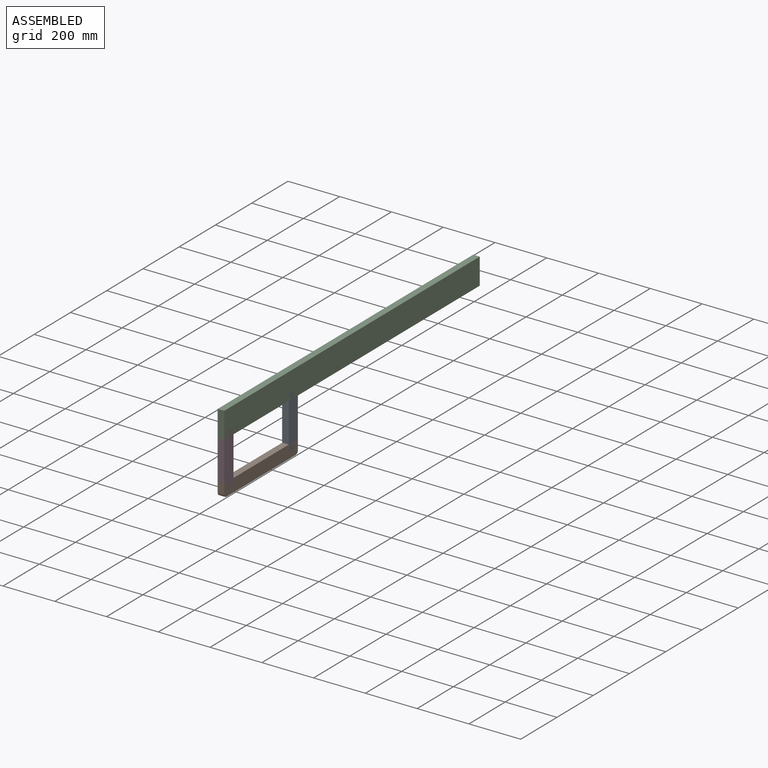
[diagram: assembled view]
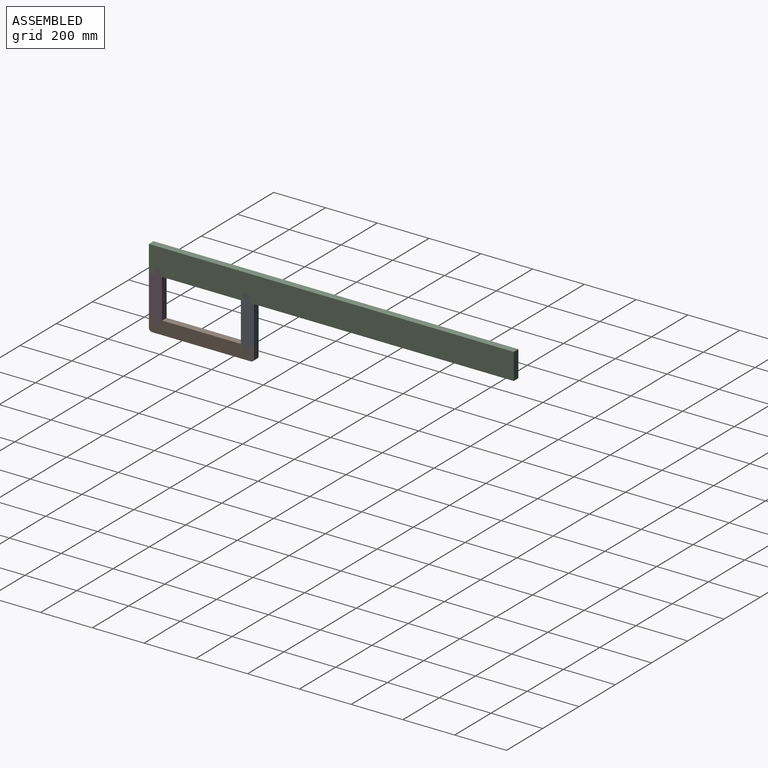
[diagram: assembled view, second angle]
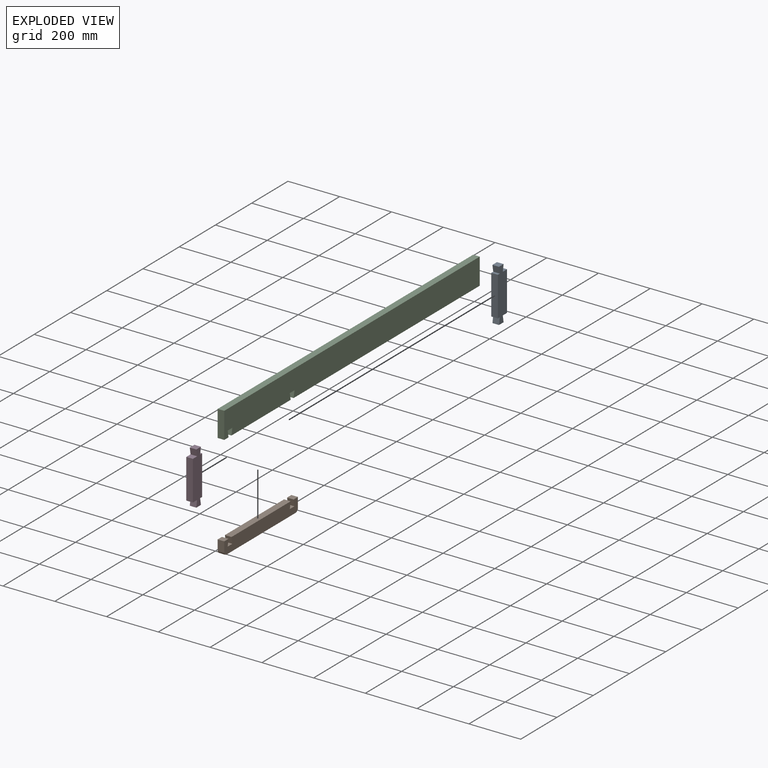
[diagram: exploded view]
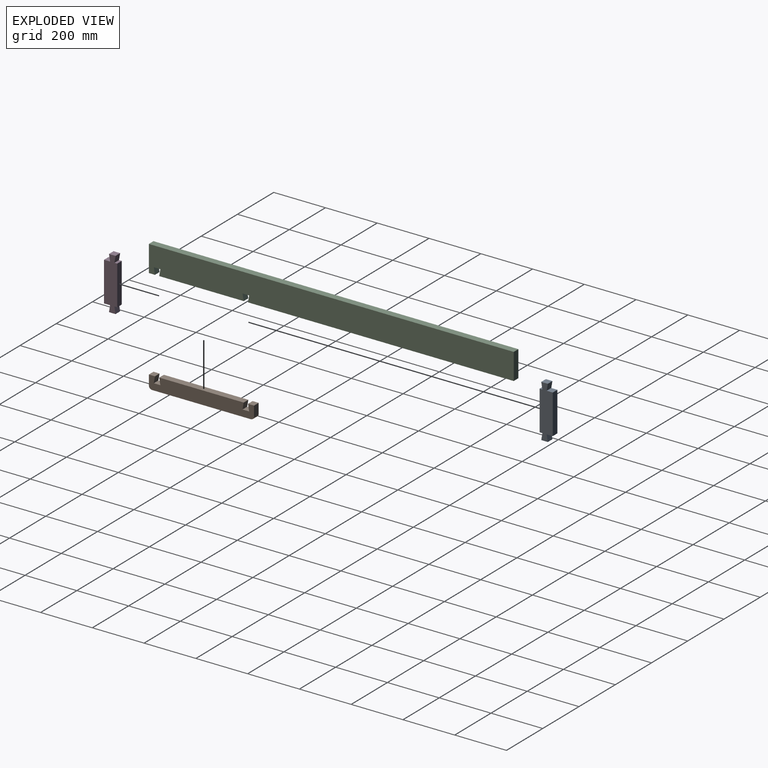
[diagram: exploded view, second angle]
ASSEMBLY  parts=4 mates=9
PART A: 14 faces, bbox 25.4x50.8x203.2 mm
  f0: plane 25.4x25.4mm, normal (0,0.98,-0.17), area 655.1mm2, adj f1,f11,f12,f13
  f1: plane 25.4x25.4mm, normal (0,0,1), area 645.2mm2, adj f0,f2,f12,f13
  f2: plane 25.4x25.4mm, normal (0,-0.98,-0.17), area 655.1mm2, adj f1,f3,f12,f13
  f3: plane 25.4x23.53mm, normal (0,0,1), area 597.6mm2, adj f2,f4,f12,f13
  f4: plane 152.4x25.4mm, normal (0,-1,0), area 3871mm2, adj f3,f5,f12,f13
  f5: plane 25.4x23.53mm, normal (0,0,-1), area 597.6mm2, adj f4,f6,f12,f13
  f6: plane 25.4x25.4mm, normal (0,-0.98,0.17), area 655.1mm2, adj f5,f7,f12,f13
  f7: plane 25.4x25.4mm, normal (0,0,-1), area 645.2mm2, adj f6,f8,f12,f13
  f8: plane 25.4x25.4mm, normal (0,0.98,0.17), area 655.1mm2, adj f7,f9,f12,f13
  f9: plane 25.4x10.83mm, normal (0,0,-1), area 275mm2, adj f8,f10,f12,f13
  f10: plane 152.4x25.4mm, normal (0,1,0), area 3871mm2, adj f9,f11,f12,f13
  f11: plane 25.4x10.83mm, normal (0,0,1), area 275mm2, adj f0,f10,f12,f13
  f12: plane 203.2x50.8mm, normal (1,0,0), area 8804.7mm2, adj f0,f1,f2,f3,f4,f5,f6,f7
  f13: plane 203.2x50.8mm, normal (-1,0,0), area 8804.7mm2, adj f0,f1,f2,f3,f4,f5,f6,f7
PART B: 16 faces, bbox 25.4x406.4x50.8 mm
  f0: plane 25.4x23.53mm, normal (0,0,1), area 597.6mm2, adj f1,f11,f12,f13
  f1: plane 38.1x25.4mm, normal (0,-1,0), area 967.7mm2, adj f0,f12,f13,f14
  f2: plane 381x25.4mm, normal (0,0,-1), area 9677.4mm2, adj f12,f13,f14,f15
  f3: plane 38.1x25.4mm, normal (0,1,0), area 967.7mm2, adj f4,f12,f13,f15
  f4: plane 25.4x23.53mm, normal (0,0,1), area 597.6mm2, adj f3,f5,f12,f13
  f5: plane 25.4x25.4mm, normal (0,-0.98,-0.17), area 655.1mm2, adj f4,f6,f12,f13
  f6: plane 25.4x25.4mm, normal (0,0,1), area 645.2mm2, adj f5,f7,f12,f13
  f7: plane 25.4x25.4mm, normal (0,0.98,-0.17), area 655.1mm2, adj f6,f8,f12,f13
  f8: plane 326.46x25.4mm, normal (0,0,1), area 8292mm2, adj f7,f9,f12,f13
  f9: plane 25.4x25.4mm, normal (0,-0.98,-0.17), area 655.1mm2, adj f8,f10,f12,f13
  f10: plane 25.4x25.4mm, normal (0,0,1), area 645.2mm2, adj f9,f11,f12,f13
  f11: plane 25.4x25.4mm, normal (0,0.98,-0.17), area 655.1mm2, adj f0,f10,f12,f13
  f12: plane 406.4x50.8mm, normal (1,0,0), area 19513.1mm2, adj f0,f1,f2,f3,f4,f5,f6,f7
  f13: plane 406.4x50.8mm, normal (-1,0,0), area 19513.1mm2, adj f0,f1,f2,f3,f4,f5,f6,f7
  f14: cylinder r=12.7mm len=25.4mm, axis (-1,0,0), area 506.7mm2, adj f1,f2,f12,f13
  f15: cylinder r=12.7mm len=25.4mm, axis (-1,0,0), area 506.7mm2, adj f2,f3,f12,f13
PART C: 14 faces, bbox 25.4x1409.7x101.6 mm
  f0: plane 101.6x25.4mm, normal (0,-1,0), area 2580.6mm2, adj f1,f11,f12,f13
  f1: plane 25.4x23.53mm, normal (0,0,-1), area 597.6mm2, adj f0,f2,f12,f13
  f2: plane 25.4x25.4mm, normal (0,0.98,0.17), area 655.1mm2, adj f1,f3,f12,f13
  f3: plane 25.4x25.4mm, normal (0,0,-1), area 645.2mm2, adj f2,f4,f12,f13
  f4: plane 25.4x25.4mm, normal (0,-0.98,0.17), area 655.1mm2, adj f3,f5,f12,f13
  f5: plane 326.46x25.4mm, normal (0,0,-1), area 8292mm2, adj f4,f6,f12,f13
  f6: plane 25.4x25.4mm, normal (0,0.98,0.17), area 655.1mm2, adj f5,f7,f12,f13
  f7: plane 25.4x25.4mm, normal (0,0,-1), area 645.2mm2, adj f6,f8,f12,f13
  f8: plane 25.4x25.4mm, normal (0,-0.98,0.17), area 655.1mm2, adj f7,f9,f12,f13
  f9: plane 1026.83x25.4mm, normal (0,0,-1), area 26081.4mm2, adj f8,f10,f12,f13
  f10: plane 101.6x25.4mm, normal (0,1,0), area 2580.6mm2, adj f9,f11,f12,f13
  f11: plane 1409.7x25.4mm, normal (0,0,1), area 35806.4mm2, adj f0,f10,f12,f13
  f12: plane 1409.7x101.6mm, normal (1,0,0), area 142162.7mm2, adj f0,f1,f2,f3,f4,f5,f6,f7
  f13: plane 1409.7x101.6mm, normal (-1,0,0), area 142162.7mm2, adj f0,f1,f2,f3,f4,f5,f6,f7
PART D: same geometry as A
PLACE A rot(axis=(0,0,-1),180deg) t=(71.11,509.82,149.59)mm
PLACE B rot(axis=(0.08,0.95,0.32),0deg) t=(45.71,147.87,-28.21)mm
PLACE C t=(45.71,147.87,124.19)mm
PLACE D t=(45.71,192.32,149.59)mm
MATE planar B.f3 <-> A.f4  axis (0,1,0) through (58.41,554.27,-47.26)mm
MATE planar C.f0 <-> D.f4  axis (0,-1,0) through (58.41,147.87,174.99)mm
MATE planar B.f8 <-> A.f5  axis (0,0,1) through (58.41,351.07,-28.21)mm
MATE planar B.f1 <-> D.f4  axis (0,-1,0) through (58.41,147.87,-47.26)mm
MATE planar D.f5 <-> B.f0  axis (0,0,-1) through (58.41,159.64,-28.21)mm
MATE planar B.f12 <-> D.f12  axis (1,0,0) through (71.11,192.32,-53.61)mm
MATE planar A.f13 <-> B.f12  axis (1,0,0) through (71.11,528.11,47.99)mm
MATE planar D.f12 <-> C.f12  axis (1,0,0) through (71.11,159.64,124.19)mm
MATE planar D.f3 <-> C.f5  axis (0,0,1) through (58.41,159.64,124.19)mm
